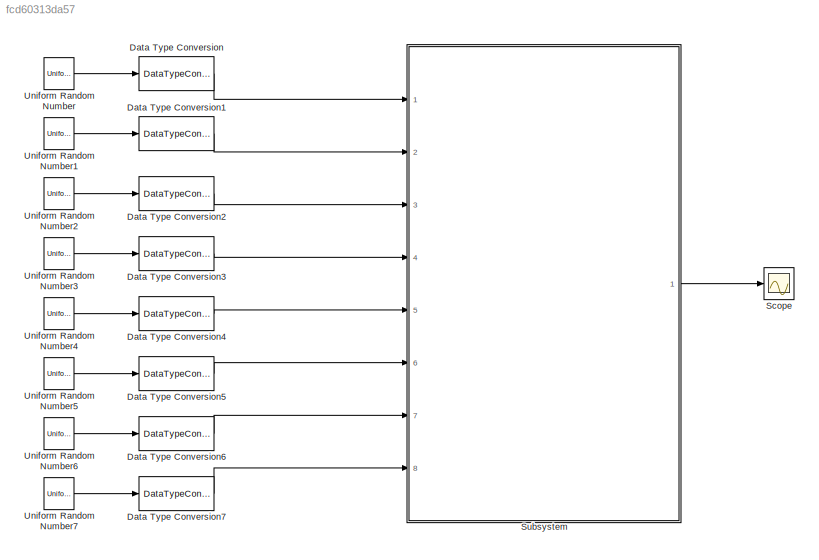
MODEL slx_fcd60313da57
KIND model
CONFIG AbsTol = auto
CONFIG EnableMultiTasking = off
CONFIG FixedStep = auto
CONFIG MaxStep = auto
CONFIG MinStep = auto
CONFIG PreLoadFcn = lab1_init
CONFIG RelTol = 1e-3
CONFIG SampleTimeConstraint = Unconstrained
CONFIG SolverName = VariableStepAuto
CONFIG StartTime = 0.0
CONFIG StopTime = 10.0
BLOCK [DataTypeConversion] Data Type Conversion
  LockScale = on
  OutDataTypeStr = int8
  RndMeth = Floor
  SaturateOnIntegerOverflow = off
BLOCK [DataTypeConversion] Data Type Conversion1
  LockScale = on
  OutDataTypeStr = int8
  RndMeth = Floor
  SaturateOnIntegerOverflow = off
BLOCK [DataTypeConversion] Data Type Conversion2
  LockScale = on
  OutDataTypeStr = int8
  RndMeth = Floor
  SaturateOnIntegerOverflow = off
BLOCK [DataTypeConversion] Data Type Conversion3
  LockScale = on
  OutDataTypeStr = int8
  RndMeth = Floor
  SaturateOnIntegerOverflow = off
BLOCK [DataTypeConversion] Data Type Conversion4
  LockScale = on
  OutDataTypeStr = int8
  RndMeth = Floor
  SaturateOnIntegerOverflow = off
BLOCK [DataTypeConversion] Data Type Conversion5
  LockScale = on
  OutDataTypeStr = int8
  RndMeth = Floor
  SaturateOnIntegerOverflow = off
BLOCK [DataTypeConversion] Data Type Conversion6
  LockScale = on
  OutDataTypeStr = int8
  RndMeth = Floor
  SaturateOnIntegerOverflow = off
BLOCK [DataTypeConversion] Data Type Conversion7
  LockScale = on
  OutDataTypeStr = int8
  RndMeth = Floor
  SaturateOnIntegerOverflow = off
BLOCK [Scope] Scope
  Floating = off
  NumInputPorts = 1
  Ports = [1]
  ScopeSpecificationString = Simulink.scopes.TimeScopeBlockCfg('CurrentConfiguration', extmgr.ConfigurationSet(extmgr.Configuration('Core','General UI',true),extmgr.Configuration('Core','Source UI',true),extmgr.Configuration('Sources','WiredSimulink',true),extmgr.Configuration('Visuals','Time Domain',true,'SerializedDisplays',{struct('MinYLimReal','-22510.73778','MaxYLimReal','32371.02524','YLabelReal','','MinYLimMag','   0.0...<+1406ch>
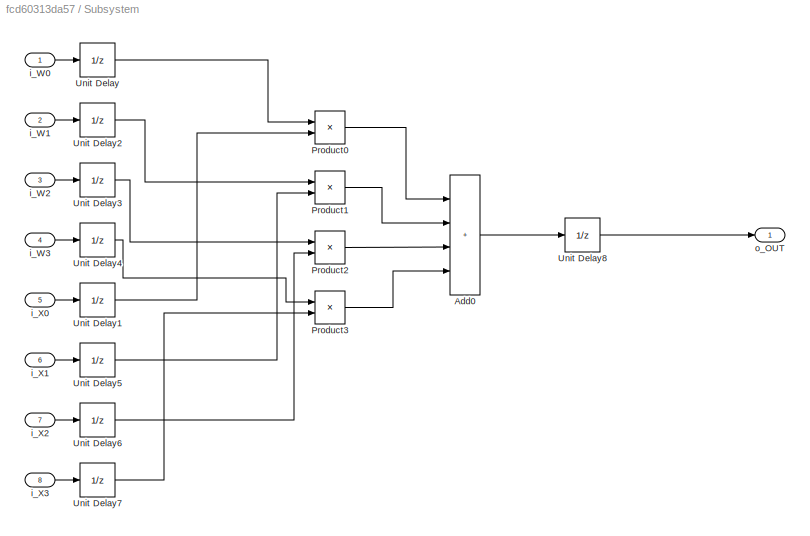
BLOCK [SubSystem] Subsystem
  Ports = [8, 1]
  RequestExecContextInheritance = off
BLOCK [Sum] Subsystem/Add0
  AccumDataTypeStr = int16
  IconShape = rectangular
  Inputs = ++++
  Ports = [4, 1]
BLOCK [Product] Subsystem/Product0
  OutDataTypeStr = int16
  Ports = [2, 1]
BLOCK [Product] Subsystem/Product1
  OutDataTypeStr = int16
  Ports = [2, 1]
BLOCK [Product] Subsystem/Product2
  OutDataTypeStr = int16
  Ports = [2, 1]
BLOCK [Product] Subsystem/Product3
  OutDataTypeStr = int16
  Ports = [2, 1]
BLOCK [UnitDelay] Subsystem/Unit Delay
  HasFrameUpgradeWarning = on
  SampleTime = -1
BLOCK [UnitDelay] Subsystem/Unit Delay1
  HasFrameUpgradeWarning = on
  SampleTime = -1
BLOCK [UnitDelay] Subsystem/Unit Delay2
  HasFrameUpgradeWarning = on
  SampleTime = -1
BLOCK [UnitDelay] Subsystem/Unit Delay3
  HasFrameUpgradeWarning = on
  SampleTime = -1
BLOCK [UnitDelay] Subsystem/Unit Delay4
  HasFrameUpgradeWarning = on
  SampleTime = -1
BLOCK [UnitDelay] Subsystem/Unit Delay5
  HasFrameUpgradeWarning = on
  SampleTime = -1
BLOCK [UnitDelay] Subsystem/Unit Delay6
  HasFrameUpgradeWarning = on
  SampleTime = -1
BLOCK [UnitDelay] Subsystem/Unit Delay7
  HasFrameUpgradeWarning = on
  SampleTime = -1
BLOCK [UnitDelay] Subsystem/Unit Delay8
  HasFrameUpgradeWarning = on
  SampleTime = -1
BLOCK [Inport] Subsystem/i_W0
  LockScale = on
  OutDataTypeStr = int8
BLOCK [Inport] Subsystem/i_W1
  LockScale = on
  OutDataTypeStr = int8
  Port = 2
BLOCK [Inport] Subsystem/i_W2
  LockScale = on
  OutDataTypeStr = int8
  Port = 3
BLOCK [Inport] Subsystem/i_W3
  LockScale = on
  OutDataTypeStr = int8
  Port = 4
BLOCK [Inport] Subsystem/i_X0
  LockScale = on
  OutDataTypeStr = int8
  Port = 5
BLOCK [Inport] Subsystem/i_X1
  LockScale = on
  OutDataTypeStr = int8
  Port = 6
BLOCK [Inport] Subsystem/i_X2
  LockScale = on
  OutDataTypeStr = int8
  Port = 7
BLOCK [Inport] Subsystem/i_X3
  LockScale = on
  OutDataTypeStr = int8
  Port = 8
BLOCK [Outport] Subsystem/o_OUT
  OutDataTypeStr = int16
BLOCK [UniformRandomNumber] Uniform Random Number
  Maximum = 2^8-1
  Minimum = 0
  SampleTime = 1
  Seed = 1
BLOCK [UniformRandomNumber] Uniform Random Number1
  Maximum = 2^8-1
  Minimum = 0
  SampleTime = 1
  Seed = 2
BLOCK [UniformRandomNumber] Uniform Random Number2
  Maximum = 2^8-1
  Minimum = 0
  SampleTime = 1
  Seed = 3
BLOCK [UniformRandomNumber] Uniform Random Number3
  Maximum = 2^8-1
  Minimum = 0
  SampleTime = 1
  Seed = 4
BLOCK [UniformRandomNumber] Uniform Random Number4
  Maximum = 2^8-1
  Minimum = 0
  SampleTime = 1
  Seed = 5
BLOCK [UniformRandomNumber] Uniform Random Number5
  Maximum = 2^8-1
  Minimum = 0
  SampleTime = 1
  Seed = 6
BLOCK [UniformRandomNumber] Uniform Random Number6
  Maximum = 2^8-1
  Minimum = 0
  SampleTime = 1
  Seed = 7
BLOCK [UniformRandomNumber] Uniform Random Number7
  Maximum = 2^8-1
  Minimum = 0
  SampleTime = 1
  Seed = 8
LINE Data Type Conversion1:1 -> Subsystem:2
LINE Data Type Conversion2:1 -> Subsystem:3
LINE Data Type Conversion3:1 -> Subsystem:4
LINE Data Type Conversion4:1 -> Subsystem:5
LINE Data Type Conversion5:1 -> Subsystem:6
LINE Data Type Conversion6:1 -> Subsystem:7
LINE Data Type Conversion7:1 -> Subsystem:8
LINE Data Type Conversion:1 -> Subsystem:1
LINE Subsystem/Add0:1 -> Subsystem/Unit Delay8:1
LINE Subsystem/Product0:1 -> Subsystem/Add0:1
LINE Subsystem/Product1:1 -> Subsystem/Add0:2
LINE Subsystem/Product2:1 -> Subsystem/Add0:3
LINE Subsystem/Product3:1 -> Subsystem/Add0:4
LINE Subsystem/Unit Delay1:1 -> Subsystem/Product0:2
LINE Subsystem/Unit Delay2:1 -> Subsystem/Product1:1
LINE Subsystem/Unit Delay3:1 -> Subsystem/Product2:1
LINE Subsystem/Unit Delay4:1 -> Subsystem/Product3:1
LINE Subsystem/Unit Delay5:1 -> Subsystem/Product1:2
LINE Subsystem/Unit Delay6:1 -> Subsystem/Product2:2
LINE Subsystem/Unit Delay7:1 -> Subsystem/Product3:2
LINE Subsystem/Unit Delay8:1 -> Subsystem/o_OUT:1
LINE Subsystem/Unit Delay:1 -> Subsystem/Product0:1
LINE Subsystem/i_W0:1 -> Subsystem/Unit Delay:1
LINE Subsystem/i_W1:1 -> Subsystem/Unit Delay2:1
LINE Subsystem/i_W2:1 -> Subsystem/Unit Delay3:1
LINE Subsystem/i_W3:1 -> Subsystem/Unit Delay4:1
LINE Subsystem/i_X0:1 -> Subsystem/Unit Delay1:1
LINE Subsystem/i_X1:1 -> Subsystem/Unit Delay5:1
LINE Subsystem/i_X2:1 -> Subsystem/Unit Delay6:1
LINE Subsystem/i_X3:1 -> Subsystem/Unit Delay7:1
LINE Subsystem:1 -> Scope:1
LINE Uniform Random Number1:1 -> Data Type Conversion1:1
LINE Uniform Random Number2:1 -> Data Type Conversion2:1
LINE Uniform Random Number3:1 -> Data Type Conversion3:1
LINE Uniform Random Number4:1 -> Data Type Conversion4:1
LINE Uniform Random Number5:1 -> Data Type Conversion5:1
LINE Uniform Random Number6:1 -> Data Type Conversion6:1
LINE Uniform Random Number7:1 -> Data Type Conversion7:1
LINE Uniform Random Number:1 -> Data Type Conversion:1
